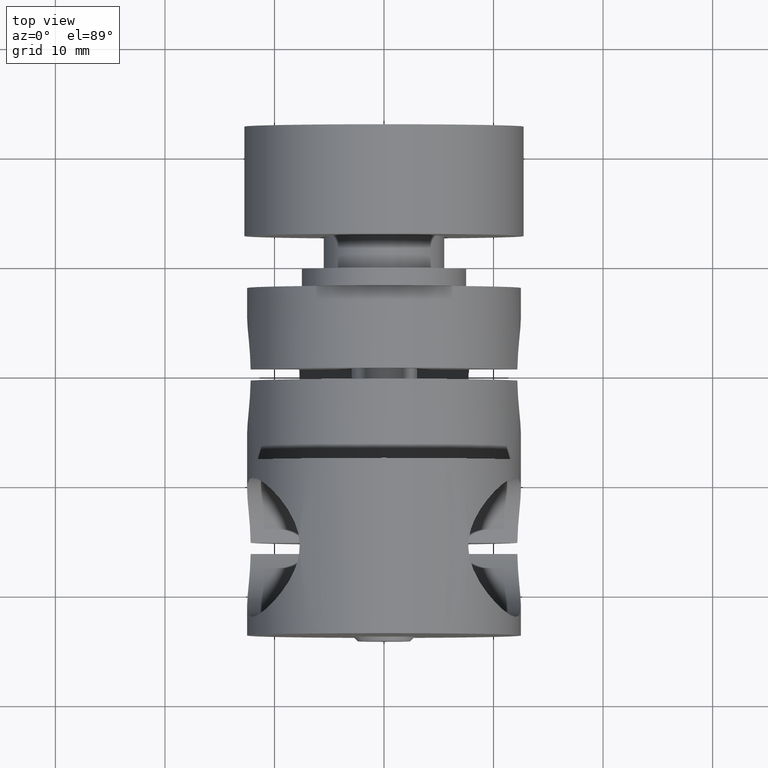
[diagram: clean part render]
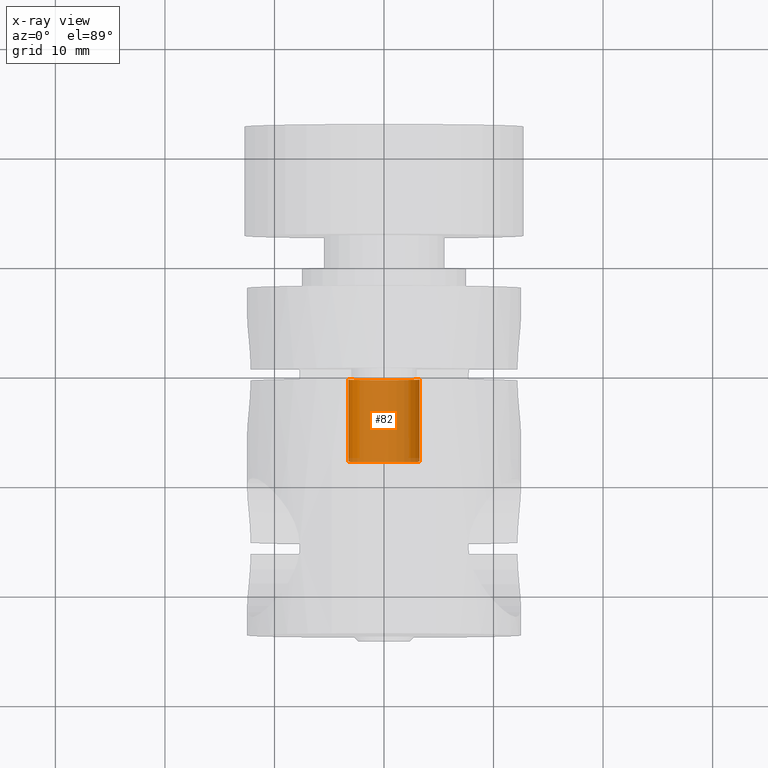
[diagram: x-ray — body ghosted, one internal face saturated and labeled with its STEP entity id]
A machine part, top view, then the same camera in x-ray: the body is ghosted and one INTERNAL B-rep face — a face not visible from any outside direction — is saturated and labeled: STEP entity #82.
In plain terms, the highlighted cylindrical surface (edge-blend (fillet) strip) has radius 3.25 mm, axis along (0, -1, 0).
Its self-contained STEP definition (entity closure, byte-faithful):
#73 = VERTEX_POINT ( 'NONE', #1950 ) ;
#81 = ORIENTED_EDGE ( 'NONE', *, *, #473, .F. ) ;
#82 = ADVANCED_FACE ( 'NONE', ( #1377 ), #2018, .F. ) ;
#84 = DIRECTION ( 'NONE',  ( 0.0000000000000000000, -1.000802005371234500E-016, -1.000000000000000000 ) ) ;
#122 = DIRECTION ( 'NONE',  ( 1.000000000000000000, 0.0000000000000000000, 0.0000000000000000000 ) ) ;
#128 = CARTESIAN_POINT ( 'NONE',  ( 9.834144658631932200E-016, 8.000000000000003600, 7.500000000000000000 ) ) ;
#251 = CARTESIAN_POINT ( 'NONE',  ( 9.834144658631932200E-016, -0.4999999999999995600, 7.500000000000000000 ) ) ;
#446 = CARTESIAN_POINT ( 'NONE',  ( -3.250000000000000900, -7.999999999999998200, 7.500000000000001800 ) ) ;
#452 = VECTOR ( 'NONE', #2029, 1000.000000000000000 ) ;
#473 = EDGE_CURVE ( 'NONE', #1694, #485, #1120, .T. ) ;
#485 = VERTEX_POINT ( 'NONE', #2024 ) ;
#640 = ORIENTED_EDGE ( 'NONE', *, *, #766, .T. ) ;
#663 = DIRECTION ( 'NONE',  ( 0.0000000000000000000, -1.000000000000000000, 1.224606353822377300E-016 ) ) ;
#714 = DIRECTION ( 'NONE',  ( 0.0000000000000000000, -1.000000000000000000, 1.224606353822377300E-016 ) ) ;
#721 = CARTESIAN_POINT ( 'NONE',  ( 3.250000000000002700, 8.000000000000003600, 7.500000000000000000 ) ) ;
#764 = DIRECTION ( 'NONE',  ( 0.0000000000000000000, -1.000000000000000000, 1.224606353822377300E-016 ) ) ;
#766 = EDGE_CURVE ( 'NONE', #73, #1117, #794, .T. ) ;
#794 = LINE ( 'NONE', #2047, #2163 ) ;
#829 = CIRCLE ( 'NONE', #1369, 3.250000000000001800 ) ;
#1113 = CIRCLE ( 'NONE', #1287, 3.250000000000001300 ) ;
#1117 = VERTEX_POINT ( 'NONE', #446 ) ;
#1120 = LINE ( 'NONE', #721, #452 ) ;
#1192 = DIRECTION ( 'NONE',  ( -0.0000000000000000000, 1.000000000000000000, -1.000359393072940400E-016 ) ) ;
#1272 = CARTESIAN_POINT ( 'NONE',  ( 9.834144658631932200E-016, -7.999999999999998200, 7.500000000000000900 ) ) ;
#1287 = AXIS2_PLACEMENT_3D ( 'NONE', #251, #1192, #84 ) ;
#1369 = AXIS2_PLACEMENT_3D ( 'NONE', #1272, #714, #1633 ) ;
#1377 = FACE_OUTER_BOUND ( 'NONE', #2344, .T. ) ;
#1386 = EDGE_CURVE ( 'NONE', #1117, #485, #829, .T. ) ;
#1446 = AXIS2_PLACEMENT_3D ( 'NONE', #128, #663, #122 ) ;
#1633 = DIRECTION ( 'NONE',  ( 1.000000000000000000, 0.0000000000000000000, 0.0000000000000000000 ) ) ;
#1647 = ORIENTED_EDGE ( 'NONE', *, *, #1791, .T. ) ;
#1694 = VERTEX_POINT ( 'NONE', #2255 ) ;
#1791 = EDGE_CURVE ( 'NONE', #1694, #73, #1113, .T. ) ;
#1950 = CARTESIAN_POINT ( 'NONE',  ( -3.250000000000000900, -0.4999999999999995600, 7.500000000000001800 ) ) ;
#2018 = CYLINDRICAL_SURFACE ( 'NONE', #1446, 3.250000000000001800 ) ;
#2024 = CARTESIAN_POINT ( 'NONE',  ( 3.250000000000002700, -7.999999999999998200, 7.500000000000000900 ) ) ;
#2029 = DIRECTION ( 'NONE',  ( 0.0000000000000000000, -1.000000000000000000, 1.224606353822377300E-016 ) ) ;
#2047 = CARTESIAN_POINT ( 'NONE',  ( -3.250000000000000900, 8.000000000000003600, 7.500000000000000000 ) ) ;
#2163 = VECTOR ( 'NONE', #764, 1000.000000000000000 ) ;
#2185 = ORIENTED_EDGE ( 'NONE', *, *, #1386, .T. ) ;
#2255 = CARTESIAN_POINT ( 'NONE',  ( 3.250000000000002700, -0.4999999999999995600, 7.500000000000001800 ) ) ;
#2344 = EDGE_LOOP ( 'NONE', ( #1647, #640, #2185, #81 ) ) ;